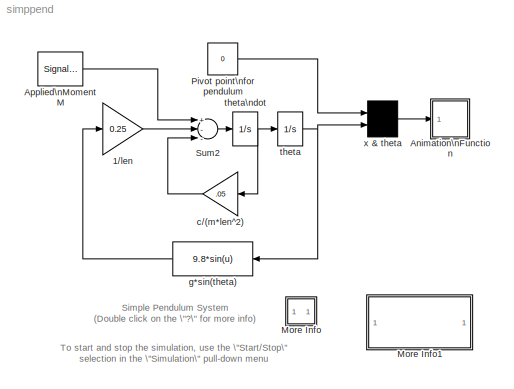
MODEL simppend
KIND model
BLOCK [Gain] 1//len
  Gain = 0.25
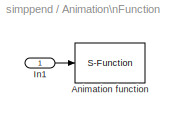
BLOCK [SubSystem] Animation\nFunction
  MaskDisplay = plot([.1,.9],[.9,.9],[.5,.2],[.9,.25],[.475,.475,.525,.525,.475],[.875,.925,.925,.875,.875])
  MaskEnableString = on
  MaskIconFrame = on
  MaskIconOpaque = on
  MaskIconRotate = none
  MaskIconUnits = normalized
  MaskPromptString = Sample time:
  MaskStyleString = edit
  MaskToolTipString = on
  MaskTunableValueString = on
  MaskType = Animation Block
  MaskValueString = 0.05
  MaskVariables = ts=@1;
  MaskVisibilityString = on
  MinAlgLoopOccurrences = off
  Ports = [1]
  PropExecContextAcrossSSBoundary = on
  RTWSystemCode = Auto
  TreatAsAtomicUnit = off
BLOCK [S-Function] Animation\nFunction/Animation function
  DeleteFcn = if ~isempty(findobj('type','figure','name','simppend Animation'));close('simppend Animation'); end;
  FunctionName = pndanim1
  Parameters = ts
  Ports = [1]
BLOCK [Inport] Animation\nFunction/In1
  IconDisplay = Port number
  LatchInput = off
  Port = 1
BLOCK [SignalGenerator] Applied\nMoment M
  Frequency = 0.100000
  Ports = [0, 1]
  Units = rad/sec
  WaveForm = square
BLOCK [SubSystem] More Info
  MaskDisplay = disp('?')
  MaskIconFrame = on
  MaskIconOpaque = on
  MaskIconRotate = none
  MaskIconUnits = autoscale
  MinAlgLoopOccurrences = off
  Ports = []
  PropExecContextAcrossSSBoundary = on
  RTWSystemCode = Auto
  TreatAsAtomicUnit = off
BLOCK [SubSystem] More Info1
  MaskDisplay = disp('Double click\\nhere for\\nSimulink Help')
  MaskIconFrame = on
  MaskIconOpaque = on
  MaskIconRotate = none
  MaskIconUnits = autoscale
  MinAlgLoopOccurrences = off
  OpenFcn = simcad(bdroot)
  Ports = []
  PropExecContextAcrossSSBoundary = on
  RTWSystemCode = Auto
  TreatAsAtomicUnit = off
BLOCK [Constant] Pivot point\nfor pendulum
  Value = 0
BLOCK [Sum] Sum2
  Inputs = +--
  Ports = [3, 1]
BLOCK [Gain] c//(m*len^2)
  Gain = .05
BLOCK [Fcn] g*sin(theta)
  Expr = 9.8*sin(u)
BLOCK [Integrator] theta
  InitialCondition = 45
  Ports = [1, 1]
BLOCK [Integrator] theta\ndot
  Ports = [1, 1]
BLOCK [Mux] x & theta
  Inputs = 2
  Ports = [2, 1]
ANNOTATION (root): Simple Pendulum System\n(Double click on the \"?\" for more info)
ANNOTATION (root): To start and stop the simulation, use the \"Start/Stop\"\nselection in the \"Simulation\" pull-down menu
ANNOTATION More Info: Associated with the demo is an animation function that\nwill automatically open a figure window and display to it.
ANNOTATION More Info: This system models a simple pendulum system with\nan applied external moment that varies periodically.
ANNOTATION More Info: Try experimenting with different initial conditions and\ndifferent setting for the applied moment M.
LINE 1//len:1 -> Sum2:2
LINE Animation\nFunction/In1:1 -> Animation\nFunction/Animation function:1
LINE Applied\nMoment M:1 -> Sum2:1
LINE Pivot point\nfor pendulum:1 -> x & theta:1
LINE Sum2:1 -> theta\ndot:1
LINE c//(m*len^2):1 -> Sum2:3
LINE g*sin(theta):1 -> 1//len:1
NET theta:1 -> g*sin(theta):1, x & theta:2
NET theta\ndot:1 -> c//(m*len^2):1, theta:1
LINE x & theta:1 -> Animation\nFunction:1
note: NET lines group one-source signal fan-out (src -> all destinations, sorted); 1:1 wires keep LINE
